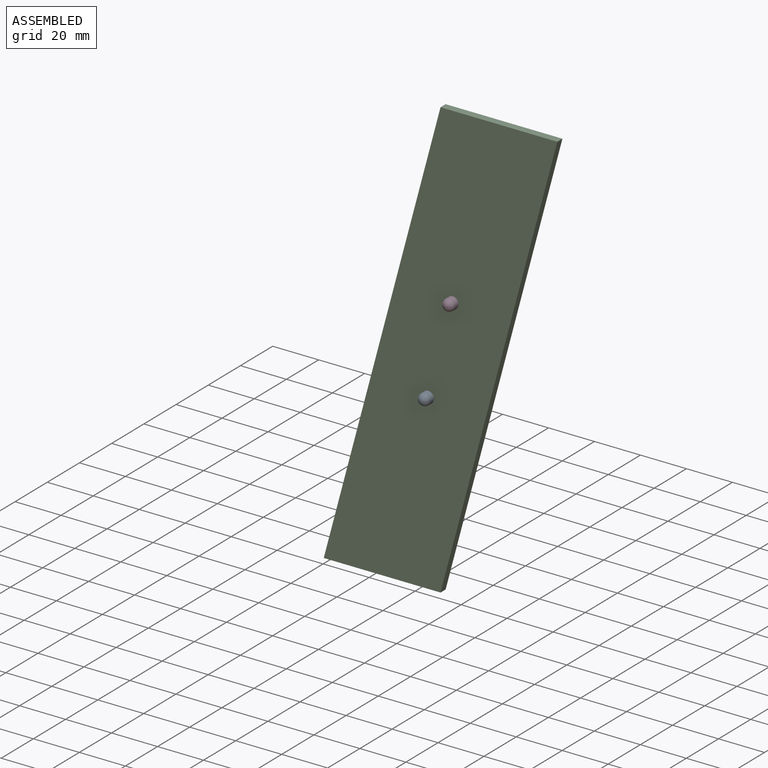
[diagram: assembled view]
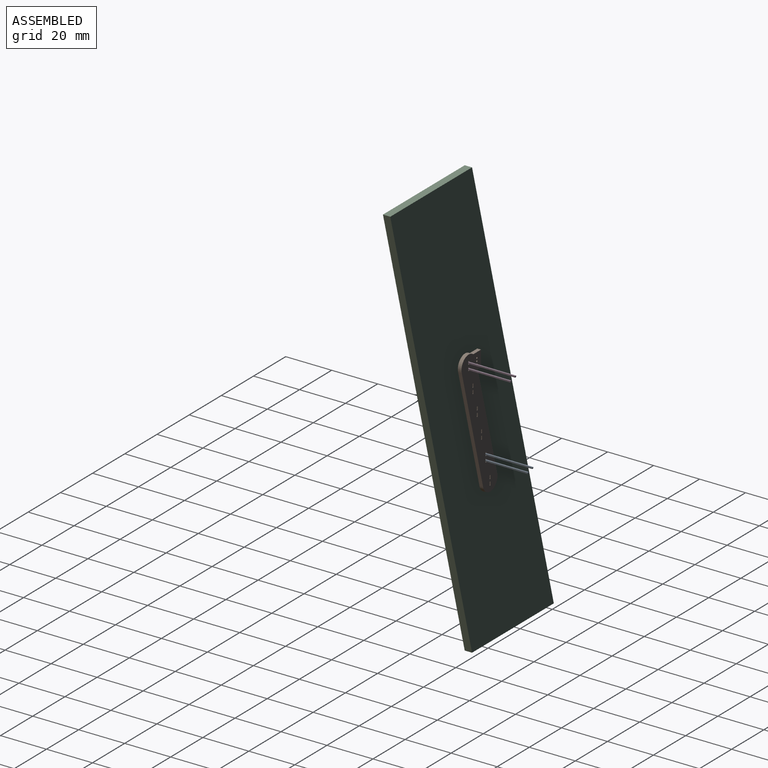
[diagram: assembled view, second angle]
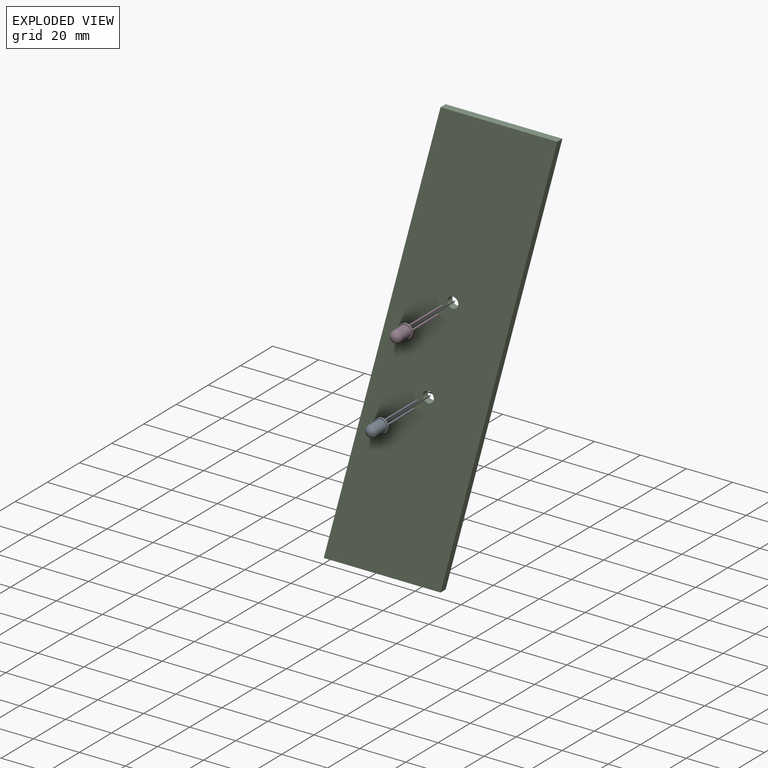
[diagram: exploded view]
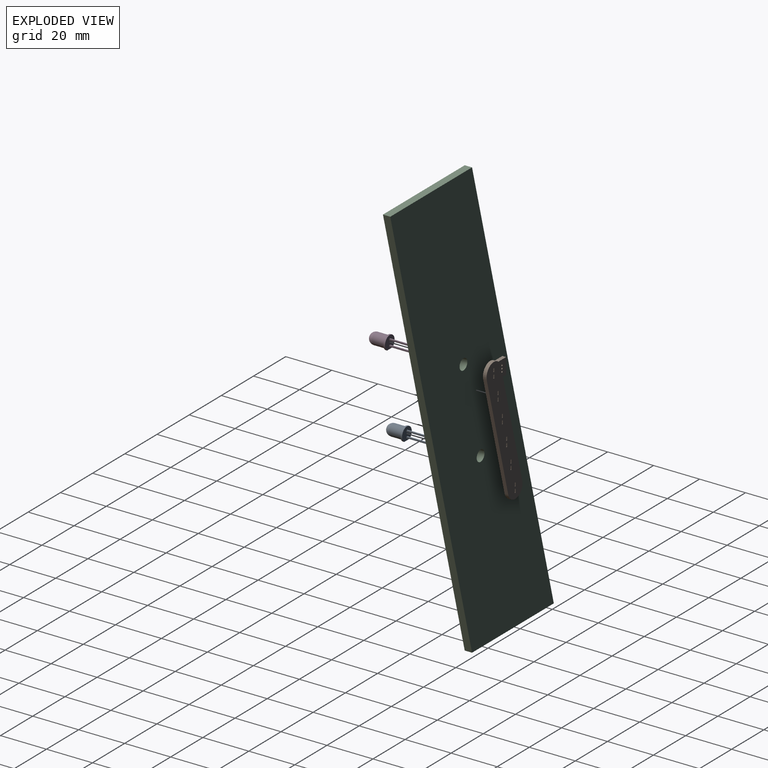
[diagram: exploded view, second angle]
ASSEMBLY  parts=4 mates=3
PART A: 16 faces, bbox 5.5x6x30.5 mm
  f0: plane 6x5.5mm, normal (0,0,-1), area 26.4mm2, adj f3,f4,f6,f7,f8,f9,f10,f11
  f1: cylinder r=2.5mm len=5.3mm, axis (0,0,-1), area 83.3mm2, adj f2,f5
  f2: sphere r=2.5mm, area 39.3mm2, adj f1
  f3: plane 3.32x0.7mm, normal (-1,0,0), area 2.3mm2, adj f0,f4,f5
  f4: cylinder r=3mm len=6mm, axis (0,0,-1), area 10.7mm2, adj f0,f3,f5
  f5: plane 6x5.5mm, normal (0,0,1), area 7.5mm2, adj f1,f3,f4
  f6: plane 22x0.6mm, normal (0,-1,0), area 13.2mm2, adj f0,f7,f9,f15
  f7: plane 22x0.6mm, normal (-1,0,0), area 13.2mm2, adj f0,f6,f8,f15
  f8: plane 22x0.6mm, normal (0,1,0), area 13.2mm2, adj f0,f7,f9,f15
  f9: plane 22x0.6mm, normal (1,0,0), area 13.2mm2, adj f0,f6,f8,f15
  f10: plane 20x0.6mm, normal (1,0,0), area 12mm2, adj f0,f11,f13,f14
  f11: plane 20x0.6mm, normal (0,-1,0), area 12mm2, adj f0,f10,f12,f14
  f12: plane 20x0.6mm, normal (-1,0,0), area 12mm2, adj f0,f11,f13,f14
  f13: plane 20x0.6mm, normal (0,1,0), area 12mm2, adj f0,f10,f12,f14
  f14: plane 0.6x0.6mm, normal (0,0,-1), area 0.4mm2, adj f10,f11,f12,f13
  f15: plane 0.6x0.6mm, normal (0,0,-1), area 0.4mm2, adj f6,f7,f8,f9
PART B: 60 faces, bbox 22.3x1.6x59 mm
  f0: plane 1.6x1.5mm, normal (-1,0,0), area 2.4mm2, adj f1,f57,f58,f59
  f1: plane 1.6x0.5mm, normal (0,0,1), area 0.8mm2, adj f0,f2,f58,f59
  f2: plane 1.6x1.5mm, normal (1,0,0), area 2.4mm2, adj f1,f57,f58,f59
  f3: plane 1.6x1.5mm, normal (-1,0,0), area 2.4mm2, adj f4,f42,f58,f59
  f4: plane 1.6x0.5mm, normal (0,0,1), area 0.8mm2, adj f3,f5,f58,f59
  f5: plane 1.6x1.5mm, normal (1,0,0), area 2.4mm2, adj f4,f42,f58,f59
  f6: plane 1.6x1.5mm, normal (-1,0,0), area 2.4mm2, adj f7,f43,f58,f59
  f7: plane 1.6x0.5mm, normal (0,0,1), area 0.8mm2, adj f6,f8,f58,f59
  f8: plane 1.6x1.5mm, normal (1,0,0), area 2.4mm2, adj f7,f43,f58,f59
  f9: plane 1.6x1.5mm, normal (-1,0,0), area 2.4mm2, adj f10,f44,f58,f59
  f10: plane 1.6x0.5mm, normal (0,0,1), area 0.8mm2, adj f9,f11,f58,f59
  f11: plane 1.6x1.5mm, normal (1,0,0), area 2.4mm2, adj f10,f44,f58,f59
  f12: plane 1.6x1.5mm, normal (-1,0,0), area 2.4mm2, adj f13,f45,f58,f59
  f13: plane 1.6x0.49mm, normal (0,0,1), area 0.8mm2, adj f12,f14,f58,f59
  f14: plane 1.6x1.5mm, normal (1,0,0), area 2.4mm2, adj f13,f45,f58,f59
  f15: plane 1.6x1.5mm, normal (-1,0,0), area 2.4mm2, adj f16,f46,f58,f59
  f16: plane 1.6x0.5mm, normal (0,0,1), area 0.8mm2, adj f15,f17,f58,f59
  f17: plane 1.6x1.5mm, normal (1,0,0), area 2.4mm2, adj f16,f46,f58,f59
  f18: plane 1.6x1.5mm, normal (-1,0,0), area 2.4mm2, adj f19,f47,f58,f59
  f19: plane 1.6x0.49mm, normal (0,0,1), area 0.8mm2, adj f18,f20,f58,f59
  f20: plane 1.6x1.5mm, normal (1,0,0), area 2.4mm2, adj f19,f47,f58,f59
  f21: plane 1.6x1.5mm, normal (-1,0,0), area 2.4mm2, adj f22,f48,f58,f59
  f22: plane 1.6x0.49mm, normal (0,0,1), area 0.8mm2, adj f21,f23,f58,f59
  f23: plane 1.6x1.5mm, normal (1,0,0), area 2.4mm2, adj f22,f48,f58,f59
  f24: plane 1.6x1.5mm, normal (-1,0,0), area 2.4mm2, adj f25,f49,f58,f59
  f25: plane 1.6x0.49mm, normal (0,0,1), area 0.8mm2, adj f24,f26,f58,f59
  f26: plane 1.6x1.5mm, normal (1,0,0), area 2.4mm2, adj f25,f49,f58,f59
  f27: plane 1.6x1.5mm, normal (-1,0,0), area 2.4mm2, adj f28,f50,f58,f59
  f28: plane 1.6x0.49mm, normal (0,0,1), area 0.8mm2, adj f27,f29,f58,f59
  f29: plane 1.6x1.5mm, normal (1,0,0), area 2.4mm2, adj f28,f50,f58,f59
  f30: plane 50x13.31mm, normal (0.97,0,-0.26), area 82.8mm2, adj f31,f54,f58,f59
  f31: cylinder r=4.5mm len=7.33mm, axis (0,1,0), area 18.1mm2, adj f30,f32,f58,f59
  f32: plane 4.79x1.6mm, normal (0,0,1), area 7.7mm2, adj f31,f33,f58,f59
  f33: plane 7x1.6mm, normal (-1,0,0), area 11.2mm2, adj f32,f34,f58,f59
  f34: plane 2.03x1.6mm, normal (0,0,-1), area 3.3mm2, adj f33,f35,f58,f59
  f35: plane 45.34x12.07mm, normal (-0.97,0,0.26), area 75.1mm2, adj f34,f54,f58,f59
  f36: plane 1.6x0.49mm, normal (0,0,-1), area 0.8mm2, adj f37,f55,f58,f59
  f37: plane 1.6x1.5mm, normal (-1,0,0), area 2.4mm2, adj f36,f38,f58,f59
  f38: plane 1.6x0.49mm, normal (0,0,1), area 0.8mm2, adj f37,f55,f58,f59
  f39: plane 1.6x1.5mm, normal (-1,0,0), area 2.4mm2, adj f40,f56,f58,f59
  f40: plane 1.6x0.49mm, normal (0,0,1), area 0.8mm2, adj f39,f41,f58,f59
  f41: plane 1.6x1.5mm, normal (1,0,0), area 2.4mm2, adj f40,f56,f58,f59
  f42: plane 1.6x0.5mm, normal (0,0,-1), area 0.8mm2, adj f3,f5,f58,f59
  f43: plane 1.6x0.5mm, normal (0,0,-1), area 0.8mm2, adj f6,f8,f58,f59
  f44: plane 1.6x0.5mm, normal (0,0,-1), area 0.8mm2, adj f9,f11,f58,f59
  f45: plane 1.6x0.49mm, normal (0,0,-1), area 0.8mm2, adj f12,f14,f58,f59
  f46: plane 1.6x0.5mm, normal (0,0,-1), area 0.8mm2, adj f15,f17,f58,f59
  f47: plane 1.6x0.49mm, normal (0,0,-1), area 0.8mm2, adj f18,f20,f58,f59
  f48: plane 1.6x0.49mm, normal (0,0,-1), area 0.8mm2, adj f21,f23,f58,f59
  f49: plane 1.6x0.49mm, normal (0,0,-1), area 0.8mm2, adj f24,f26,f58,f59
  f50: plane 1.6x0.49mm, normal (0,0,-1), area 0.8mm2, adj f27,f29,f58,f59
  f51: cylinder r=0.38mm len=1.6mm, axis (0,1,0), area 3.8mm2, adj f58,f59
  f52: cylinder r=0.38mm len=1.6mm, axis (0,1,0), area 3.8mm2, adj f58,f59
  f53: cylinder r=0.38mm len=1.6mm, axis (0,1,0), area 3.8mm2, adj f58,f59
  f54: cylinder r=4.5mm len=8.85mm, axis (0,1,0), area 22.6mm2, adj f30,f35,f58,f59
  f55: plane 1.6x1.5mm, normal (1,0,0), area 2.4mm2, adj f36,f38,f58,f59
  f56: plane 1.6x0.49mm, normal (0,0,-1), area 0.8mm2, adj f39,f41,f58,f59
  f57: plane 1.6x0.5mm, normal (0,0,-1), area 0.8mm2, adj f0,f2,f58,f59
  f58: plane 59x22.31mm, normal (0,-1,0), area 540.5mm2, adj f0,f1,f2,f3,f4,f5,f6,f7
  f59: plane 59x22.31mm, normal (0,1,0), area 540.5mm2, adj f0,f1,f2,f3,f4,f5,f6,f7
PART C: 8 faces, bbox 101.6x3.2x190.8 mm
  f0: plane 190.8x50.8mm, normal (0.97,0,-0.26), area 626.9mm2, adj f1,f4,f6,f7
  f1: plane 50.8x3.18mm, normal (0,0,1), area 161.3mm2, adj f0,f2,f6,f7
  f2: plane 190.8x50.8mm, normal (-0.97,0,0.26), area 626.9mm2, adj f1,f4,f6,f7
  f3: cylinder r=2.4mm len=4.8mm, axis (0,1,0), area 47.9mm2, adj f6,f7
  f4: plane 50.8x3.18mm, normal (0,0,-1), area 161.3mm2, adj f0,f2,f6,f7
  f5: cylinder r=2.4mm len=4.8mm, axis (0,1,0), area 47.9mm2, adj f6,f7
  f6: plane 190.8x101.6mm, normal (0,-1,0), area 9656.4mm2, adj f0,f1,f2,f3,f4,f5
  f7: plane 190.8x101.6mm, normal (0,1,0), area 9656.4mm2, adj f0,f1,f2,f3,f4,f5
PART D: same geometry as A
PLACE A rot(axis=(0.58,-0.58,0.58),120deg) t=(-153.16,2.31,41.95)mm
PLACE B t=(-116.68,7.08,-42.05)mm
PLACE C t=(-4.43,1.61,-2.05)mm
PLACE D rot(axis=(0.58,-0.58,0.58),120deg) t=(-142.51,2.31,81.95)mm
MATE fastened B.f31 <-> D.f1  axis (0,-1,0) through (-142.51,2.31,81.95)mm
MATE fastened A.f1 <-> C.f5  axis (0,-1,0) through (-153.16,1.61,41.95)mm
MATE fastened D.f1 <-> C.f3  axis (0,-1,0) through (-142.51,1.61,81.95)mm
